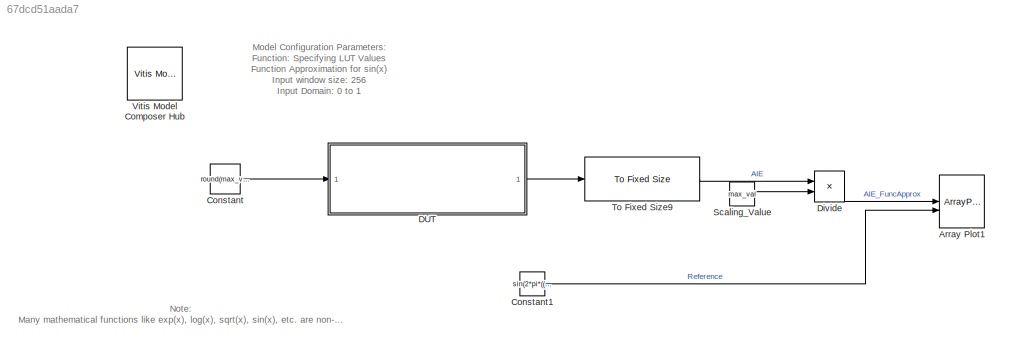
MODEL slx_67dcd51aada7
KIND model
CONFIG AbsTol = auto
CONFIG EnableMultiTasking = off
CONFIG FixedStep = auto
CONFIG InitFcn = Function_Init;
CONFIG MaxStep = auto
CONFIG MinStep = auto
CONFIG PostLoadFcn = Function_Init;
CONFIG RelTol = 1e-3
CONFIG SampleTimeConstraint = Unconstrained
CONFIG SolverName = VariableStepAuto
CONFIG StartTime = 0.0
CONFIG StopTime = 512/30e3
BLOCK [ArrayPlot] Array Plot1
  GraphicalSettings = {"Style":{"BackgroundColor":[0.12941176470588237,0.12941176470588237,0.12941176470588237],"AxesColor":[0.070588235294117646,0.070588235294117646,0.070588235294117646],"LabelsColor":[0.85098039215686272,0.85098039215686272,0.85098039215686272],"PreserveColors":false,"Visible":[true,true],"LineStyle":["-","-"],"LineWidth":[1.5,1.5],"BarWidth":[0.9,0.9],"LineColor":[[1,0.90980392156862744,0.392156862...<+723ch>
  NumInputPorts = 2
  ScopeFrameLocation = window
  ShowLegend = on
  WasSavedAsWebScope = on
  WindowPosition = [6.000000,33.000000,1920.000000,1127.000000,]
  YLimits = [-1.25 1.25]
BLOCK [Constant] Constant
  OutDataTypeStr = int16
  SampleTime = 1/30e3
  Value = round(max_val* (0:255)/256)
BLOCK [Constant] Constant1
  OutDataTypeStr = single
  SampleTime = 1/30e3
  Value = sin(2*pi*((0:255) / 256))
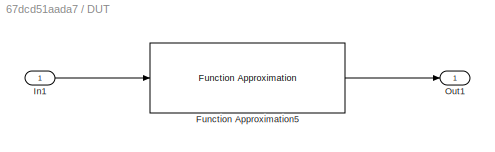
BLOCK [SubSystem] DUT
BLOCK [Reference] DUT/Function Approximation5  REF=aieDSP/Function Approximation
  SourceBlock = aieDSP/Function Approximation
  SourceType = Function Approximation
BLOCK [Inport] DUT/In1
BLOCK [Outport] DUT/Out1
BLOCK [Product] Divide
  Inputs = */
BLOCK [Constant] Scaling_Value
  OutDataTypeStr = single
  SampleTime = 1/30e3
  Value = max_val
BLOCK [Reference] To Fixed Size9  REF=aieUtilities/To Fixed Size
  SourceBlock = aieUtilities/To Fixed Size
  SourceType = To Fixed Size
BLOCK [Reference] Vitis Model Composer Hub  REF=vmcUtilities/Vitis Model Composer Hub
  SourceBlock = vmcUtilities/Vitis Model Composer Hub
  SourceType = VMC Hub
  Tag = genX
  UserDataPersistent = on
ANNOTATION (root): Model Configuration Parameters: Function: Specifying LUT Values Function Approximation for sin(x) Input window size : 256 Input Domain: 0 to 1
ANNOTATION (root): Note: Many mathematical functions like exp(x), log(x), sqrt(x), sin(x), etc. are non-linear and computationally expensive. In hardware implementations, we can’t use floating-point math libraries like in software. So we need efficient function approximations.
LINE Constant1:1 -> Array Plot1:2
LINE Constant:1 -> DUT:1
LINE DUT/Function Approximation5:1 -> DUT/Out1:1
LINE DUT/In1:1 -> DUT/Function Approximation5:1
LINE DUT:1 -> To Fixed Size9:1
LINE Divide:1 -> Array Plot1:1
LINE Scaling_Value:1 -> Divide:2
LINE To Fixed Size9:1 -> Divide:1
